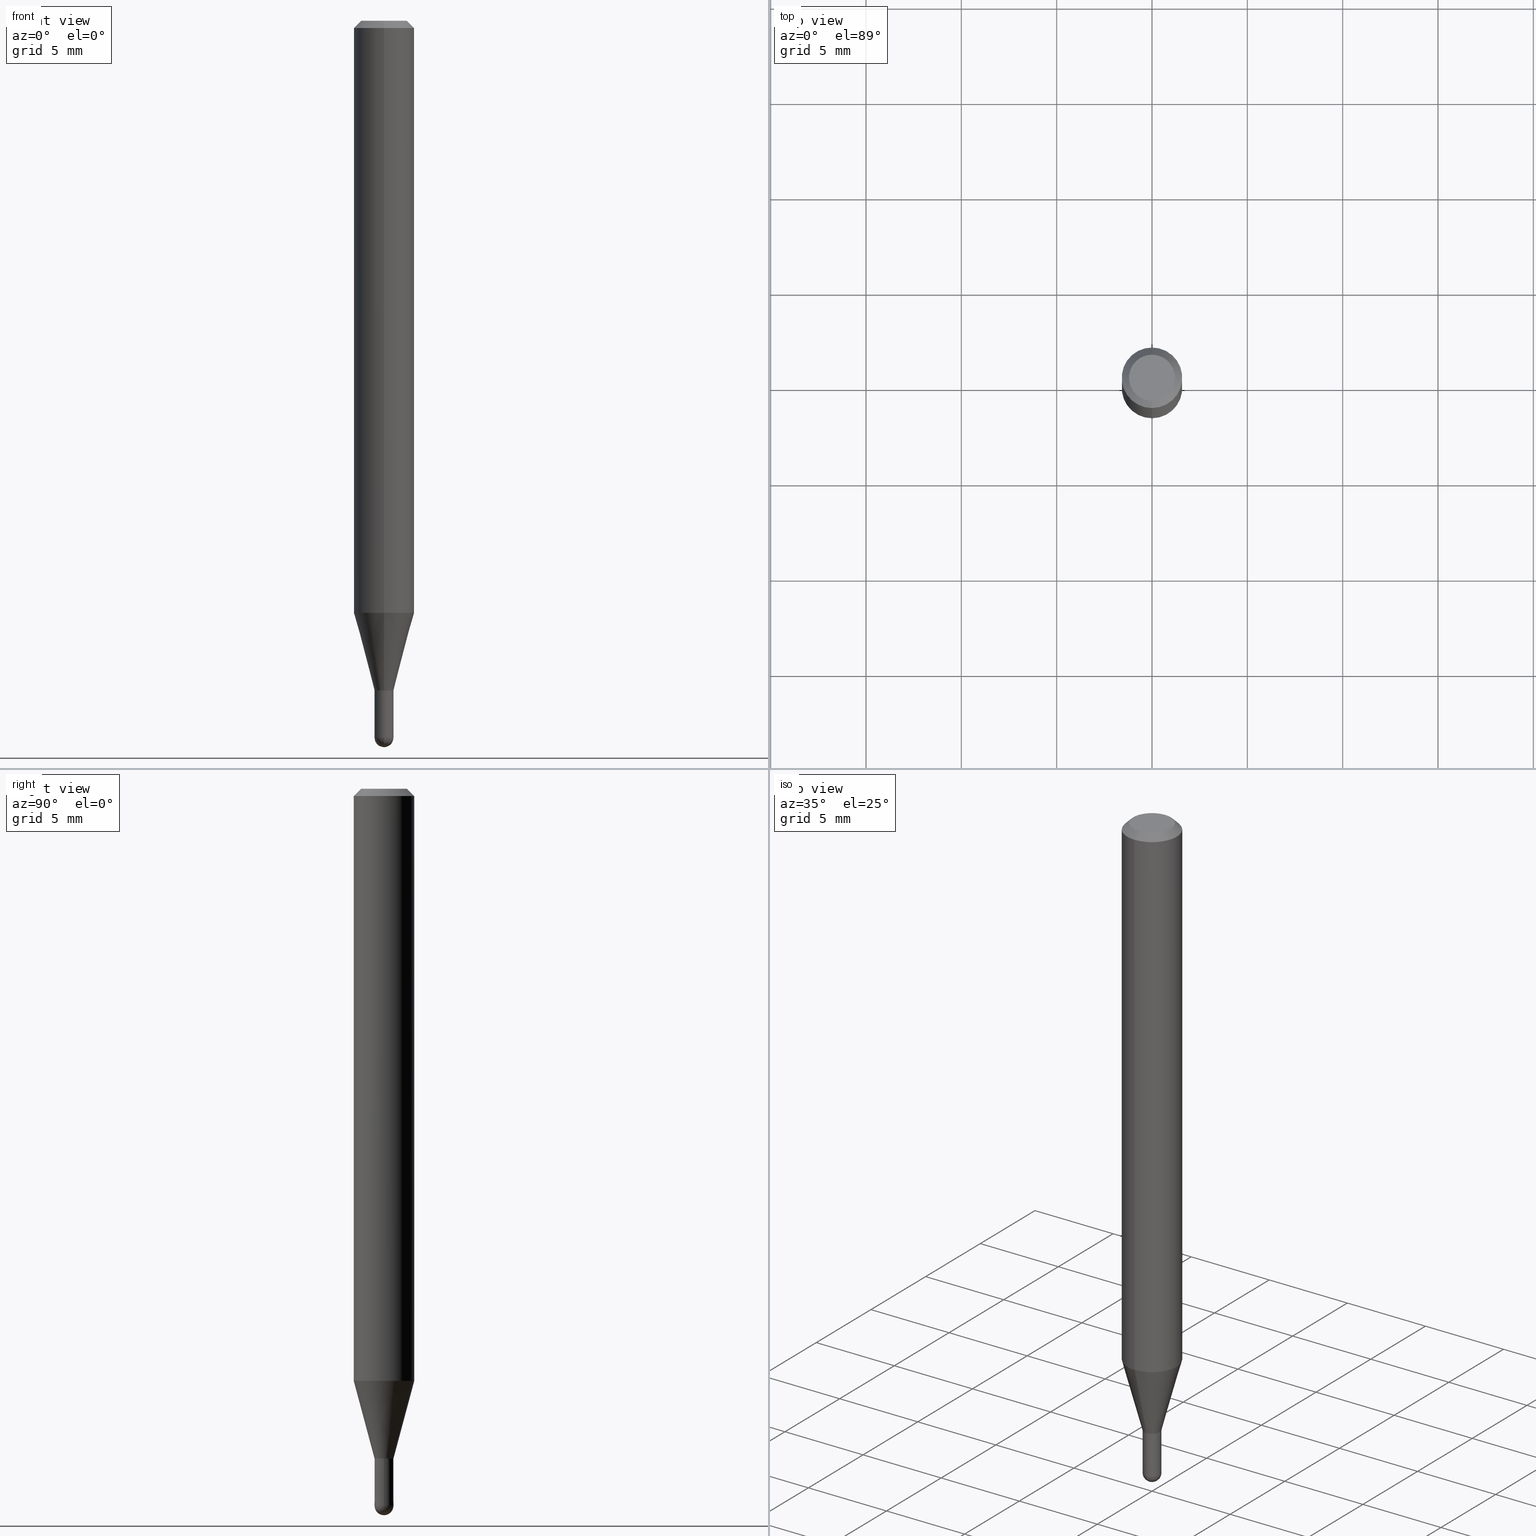
[diagram: canonical four-view strip — front | top / right | iso, engineering-drawing reading convention]
A machine part, canonical four-view strip (front | top / right | iso — engineering-drawing reading convention). The complete STEP part file that produces these views, byte-faithful:
ISO-10303-21;
HEADER;
FILE_DESCRIPTION (( 'STEP AP203' ),
    '1' );
FILE_NAME ('01462.STEP',
    '2024-03-07T21:13:20',
    ( '' ),
    ( '' ),
    'SwSTEP 2.0',
    'SolidWorks 2023',
    '' );
FILE_SCHEMA (( 'CONFIG_CONTROL_DESIGN' ));
ENDSEC;

DATA;
#1 = APPROVAL_STATUS ( 'not_yet_approved' ) ;
#2 = CARTESIAN_POINT ( 'NONE',  ( -4.364351673553916201E-16, -0.06250000000000000000, 2.182161224139924499E-16 ) ) ;
#3 = EDGE_CURVE ( 'NONE', #48, #276, #25, .T. ) ;
#4 = ORIENTED_EDGE ( 'NONE', *, *, #434, .F. ) ;
#5 = LINE ( 'NONE', #359, #385 ) ;
#6 = ORIENTED_EDGE ( 'NONE', *, *, #201, .T. ) ;
#7 = DIRECTION ( 'NONE',  ( -2.445485132504990036E-29, 3.491457958623879198E-15, 1.000000000000000000 ) ) ;
#8 = FACE_OUTER_BOUND ( 'NONE', #492, .T. ) ;
#9 = LINE ( 'NONE', #212, #313 ) ;
#10 = AXIS2_PLACEMENT_3D ( 'NONE', #367, #412, #166 ) ;
#11 = CARTESIAN_POINT ( 'NONE',  ( 1.361677722149159819E-16, 0.01949999999999517050, -1.383000000000000229 ) ) ;
#12 = EDGE_CURVE ( 'NONE', #282, #115, #324, .T. ) ;
#13 = DIRECTION ( 'NONE',  ( -6.982962677686265922E-15, -1.000000000000000000, 3.491457958623879198E-15 ) ) ;
#14 = CARTESIAN_POINT ( 'NONE',  ( 3.620516567557095727E-29, -5.169138122157277171E-15, -1.480500000000000149 ) ) ;
#15 = DIRECTION ( 'NONE',  ( -6.982962677686265922E-15, -1.000000000000000000, 4.370956789862821150E-15 ) ) ;
#16 = ORIENTED_EDGE ( 'NONE', *, *, #382, .F. ) ;
#17 = DIRECTION ( 'NONE',  ( -2.445485132504990036E-29, 3.491457958623879198E-15, 1.000000000000000000 ) ) ;
#18 = CIRCLE ( 'NONE', #369, 0.06250000000000000000 ) ;
#19 = ORIENTED_EDGE ( 'NONE', *, *, #95, .F. ) ;
#20 = ADVANCED_FACE ( 'NONE', ( #91 ), #92, .T. ) ;
#21 = DIRECTION ( 'NONE',  ( 2.445485132504990036E-29, -3.491457958623879198E-15, -1.000000000000000000 ) ) ;
#22 = CARTESIAN_POINT ( 'NONE',  ( 2.989658923416908872E-29, -4.268383521531617927E-15, -1.222521815274543844 ) ) ;
#23 = CARTESIAN_POINT ( 'NONE',  ( -1.361677722148462416E-16, -0.01950000000000520761, -1.480500000000000149 ) ) ;
#24 = ADVANCED_FACE ( 'NONE', ( #8 ), #413, .T. ) ;
#25 = CIRCLE ( 'NONE', #312, 0.01949999999999999303 ) ;
#26 = AXIS2_PLACEMENT_3D ( 'NONE', #254, #247, #168 ) ;
#27 = PRODUCT_DEFINITION_FORMATION_WITH_SPECIFIED_SOURCE ( 'ANY', '', #222, .NOT_KNOWN. ) ;
#28 = DIRECTION ( 'NONE',  ( -2.445485132504990036E-29, 3.491457958623879198E-15, 1.000000000000000000 ) ) ;
#29 = FACE_OUTER_BOUND ( 'NONE', #101, .T. ) ;
#30 = APPROVAL_ROLE ( '' ) ;
#31 = LINE ( 'NONE', #157, #155 ) ;
#32 = CC_DESIGN_DATE_AND_TIME_ASSIGNMENT ( #395, #38, ( #501 ) ) ;
#33 = AXIS2_PLACEMENT_3D ( 'NONE', #467, #138, #302 ) ;
#34 = AXIS2_PLACEMENT_3D ( 'NONE', #232, #318, #187 ) ;
#35 = CC_DESIGN_APPROVAL ( #426, ( #478 ) ) ;
#36 = PERSON_AND_ORGANIZATION_ROLE ( 'classification_officer' ) ;
#37 = VERTEX_POINT ( 'NONE', #97 ) ;
#38 = DATE_TIME_ROLE ( 'classification_date' ) ;
#39 = EDGE_LOOP ( 'NONE', ( #178, #299, #321, #175 ) ) ;
#40 = EDGE_CURVE ( 'NONE', #163, #159, #255, .T. ) ;
#41 = ORIENTED_EDGE ( 'NONE', *, *, #40, .T. ) ;
#42 = AXIS2_PLACEMENT_3D ( 'NONE', #259, #89, #57 ) ;
#43 = AXIS2_PLACEMENT_3D ( 'NONE', #380, #104, #347 ) ;
#44 = APPROVAL_DATE_TIME ( #231, #426 ) ;
#45 = CARTESIAN_POINT ( 'NONE',  ( 1.385558334732523231E-16, 0.01949999999999503172, -1.382500000000000284 ) ) ;
#46 = ORIENTED_EDGE ( 'NONE', *, *, #419, .T. ) ;
#47 = CARTESIAN_POINT ( 'NONE',  ( 2.989658923416908872E-29, -4.268383521531617927E-15, -1.222521815274543844 ) ) ;
#48 = VERTEX_POINT ( 'NONE', #337 ) ;
#49 = PERSON ( 'UNSPECIFIED', 'UNSPECIFIED', 'UNSPECIFIED', ('UNSPECIFIED'), ('UNSPECIFIED'), ('UNSPECIFIED') ) ;
#50 = DIRECTION ( 'NONE',  ( -2.445468806185136597E-29, 3.491481338843145583E-15, 1.000000000000000000 ) ) ;
#51 = EDGE_LOOP ( 'NONE', ( #274, #19, #211, #315 ) ) ;
#52 = ADVANCED_FACE ( 'NONE', ( #170 ), #98, .F. ) ;
#53 = DIRECTION ( 'NONE',  ( -6.982962677686265922E-15, -1.000000000000000000, 0.000000000000000000 ) ) ;
#54 = CONICAL_SURFACE ( 'NONE', #292, 0.01899999999999999953, 0.7853981633974718157 ) ;
#55 = DIRECTION ( 'NONE',  ( 5.024295867788180719E-15, 0.7071067811865666686, 0.7071067811865284769 ) ) ;
#56 = DIRECTION ( 'NONE',  ( -2.445485132504990036E-29, 3.491457958623879198E-15, 1.000000000000000000 ) ) ;
#57 = DIRECTION ( 'NONE',  ( -6.982962677686266711E-15, -1.000000000000000000, 0.000000000000000000 ) ) ;
#58 = FACE_OUTER_BOUND ( 'NONE', #158, .T. ) ;
#59 = EDGE_CURVE ( 'NONE', #328, #159, #490, .T. ) ;
#60 = DIRECTION ( 'NONE',  ( -6.982962677686265922E-15, -1.000000000000000000, 4.370956789862821150E-15 ) ) ;
#61 = CIRCLE ( 'NONE', #33, 0.01949999999999992017 ) ;
#62 = CONICAL_SURFACE ( 'NONE', #145, 0.06250000000000000000, 0.7853981633974483900 ) ;
#63 = ORIENTED_EDGE ( 'NONE', *, *, #169, .F. ) ;
#64 =( LENGTH_UNIT ( ) NAMED_UNIT ( * ) SI_UNIT ( $, .METRE. ) );
#65 =( NAMED_UNIT ( * ) SI_UNIT ( $, .STERADIAN. ) SOLID_ANGLE_UNIT ( ) );
#66 = LINE ( 'NONE', #386, #164 ) ;
#67 = CIRCLE ( 'NONE', #10, 0.01949999999999992017 ) ;
#68 = LENGTH_MEASURE_WITH_UNIT ( LENGTH_MEASURE( 0.02539999999999999897 ), #64 );
#69 = APPLICATION_CONTEXT ( 'configuration controlled 3d designs of mechanical parts and assemblies' ) ;
#70 = ADVANCED_FACE ( 'NONE', ( #286 ), #488, .F. ) ;
#71 = PERSON_AND_ORGANIZATION ( #49, #370 ) ;
#72 = DIRECTION ( 'NONE',  ( 4.937700262164548042E-15, 0.7071067811865451302, -0.7071067811865499042 ) ) ;
#73 = ORIENTED_EDGE ( 'NONE', *, *, #103, .T. ) ;
#74 = VECTOR ( 'NONE', #55, 39.37007874015748143 ) ;
#75 = ORIENTED_EDGE ( 'NONE', *, *, #112, .F. ) ;
#76 = EDGE_CURVE ( 'NONE', #433, #117, #144, .T. ) ;
#77 = APPROVAL_DATE_TIME ( #468, #458 ) ;
#78 = FACE_OUTER_BOUND ( 'NONE', #142, .T. ) ;
#79 = EDGE_LOOP ( 'NONE', ( #416, #16, #6, #113 ) ) ;
#80 = PERSON_AND_ORGANIZATION_ROLE ( 'design_owner' ) ;
#81 = CARTESIAN_POINT ( 'NONE',  ( 1.367794766338528106E-16, 0.01899999999999517006, -1.383000000000000229 ) ) ;
#82 = ORIENTED_EDGE ( 'NONE', *, *, #40, .F. ) ;
#83 = CLOSED_SHELL ( 'NONE', ( #411, #191, #70, #343, #221 ) ) ;
#84 = CIRCLE ( 'NONE', #26, 0.01949999999999999997 ) ;
#85 = CARTESIAN_POINT ( 'NONE',  ( 3.382105938254401951E-29, -4.828686356776826203E-15, -1.383000000000000229 ) ) ;
#86 = ORIENTED_EDGE ( 'NONE', *, *, #152, .T. ) ;
#87 = PLANE ( 'NONE',  #283 ) ;
#88 = EDGE_CURVE ( 'NONE', #115, #37, #105, .T. ) ;
#89 = DIRECTION ( 'NONE',  ( -2.445485132504990036E-29, 3.491457958623879198E-15, 1.000000000000000000 ) ) ;
#90 = DIRECTION ( 'NONE',  ( -2.445485132504990036E-29, 3.491457958623879198E-15, 1.000000000000000000 ) ) ;
#91 = FACE_OUTER_BOUND ( 'NONE', #357, .T. ) ;
#92 = CONICAL_SURFACE ( 'NONE', #384, 0.01899999999999999953, 0.7853981633974718157 ) ;
#93 = DIRECTION ( 'NONE',  ( -2.445485132504989475E-29, 3.491457958623879198E-15, 1.000000000000000000 ) ) ;
#94 = ORIENTED_EDGE ( 'NONE', *, *, #127, .T. ) ;
#95 = EDGE_CURVE ( 'NONE', #118, #512, #61, .T. ) ;
#96 = FACE_OUTER_BOUND ( 'NONE', #394, .T. ) ;
#97 = CARTESIAN_POINT ( 'NONE',  ( -4.364351673553912750E-16, -0.06250000000000005551, -0.01499999999999979128 ) ) ;
#98 = PLANE ( 'NONE',  #128 ) ;
#99 = LINE ( 'NONE', #338, #119 ) ;
#100 = CIRCLE ( 'NONE', #425, 0.01949999999999999997 ) ;
#101 = EDGE_LOOP ( 'NONE', ( #310, #291, #344, #429, #134 ) ) ;
#102 = DIRECTION ( 'NONE',  ( -2.445485132504990036E-29, 3.491457958623879198E-15, 1.000000000000000000 ) ) ;
#103 = EDGE_CURVE ( 'NONE', #147, #37, #181, .T. ) ;
#104 = DIRECTION ( 'NONE',  ( -2.445468806185136597E-29, 3.491481338843145583E-15, 1.000000000000000000 ) ) ;
#105 = CIRCLE ( 'NONE', #506, 0.06250000000000000000 ) ;
#106 = AXIS2_PLACEMENT_3D ( 'NONE', #177, #340, #263 ) ;
#107 = ADVANCED_FACE ( 'NONE', ( #505 ), #423, .T. ) ;
#108 = COORDINATED_UNIVERSAL_TIME_OFFSET ( 5, 0, .BEHIND. ) ;
#109 = CARTESIAN_POINT ( 'NONE',  ( 3.618848993293195667E-29, -5.171526183415615213E-15, -1.480500000000000149 ) ) ;
#110 = ORIENTED_EDGE ( 'NONE', *, *, #95, .T. ) ;
#111 = CALENDAR_DATE ( 2024, 7, 3 ) ;
#112 = EDGE_CURVE ( 'NONE', #118, #402, #66, .T. ) ;
#113 = ORIENTED_EDGE ( 'NONE', *, *, #88, .T. ) ;
#114 = AXIS2_PLACEMENT_3D ( 'NONE', #219, #262, #223 ) ;
#115 = VERTEX_POINT ( 'NONE', #224 ) ;
#116 = SECURITY_CLASSIFICATION_LEVEL ( 'unclassified' ) ;
#117 = VERTEX_POINT ( 'NONE', #23 ) ;
#118 = VERTEX_POINT ( 'NONE', #466 ) ;
#119 = VECTOR ( 'NONE', #498, 39.37007874015748143 ) ;
#120 = CC_DESIGN_PERSON_AND_ORGANIZATION_ASSIGNMENT ( #306, #36, ( #501 ) ) ;
#121 = CARTESIAN_POINT ( 'NONE',  ( 0.000000000000000000, 0.000000000000000000, 0.000000000000000000 ) ) ;
#122 = DIRECTION ( 'NONE',  ( 6.982962677686265922E-15, 1.000000000000000000, -3.491457958623879198E-15 ) ) ;
#123 = CARTESIAN_POINT ( 'NONE',  ( 1.385558334732527668E-16, 0.01949999999999509417, -1.383000000000000451 ) ) ;
#124 = ORIENTED_EDGE ( 'NONE', *, *, #3, .F. ) ;
#125 = DIRECTION ( 'NONE',  ( 2.445485132504990036E-29, -3.491457958623879198E-15, -1.000000000000000000 ) ) ;
#126 = CARTESIAN_POINT ( 'NONE',  ( 1.350031197944528297E-16, 0.01899999999999517006, -1.383000000000000229 ) ) ;
#127 = EDGE_CURVE ( 'NONE', #163, #150, #507, .T. ) ;
#128 = AXIS2_PLACEMENT_3D ( 'NONE', #494, #330, #122 ) ;
#129 = AXIS2_PLACEMENT_3D ( 'NONE', #22, #102, #60 ) ;
#130 = DIRECTION ( 'NONE',  ( 1.000000000000000000, -6.982962677686260400E-15, 0.000000000000000000 ) ) ;
#131 = LOCAL_TIME ( 16, 13, 20.00000000000000000, #508 ) ;
#132 = ORIENTED_EDGE ( 'NONE', *, *, #208, .F. ) ;
#133 = CYLINDRICAL_SURFACE ( 'NONE', #431, 0.01949999999999992017 ) ;
#134 = ORIENTED_EDGE ( 'NONE', *, *, #464, .T. ) ;
#135 = PERSON_AND_ORGANIZATION ( #49, #370 ) ;
#136 = EDGE_CURVE ( 'NONE', #512, #159, #356, .T. ) ;
#137 = AXIS2_PLACEMENT_3D ( 'NONE', #407, #50, #130 ) ;
#138 = DIRECTION ( 'NONE',  ( -2.445485132504990036E-29, 3.491457958623879198E-15, 1.000000000000000000 ) ) ;
#139 = DIRECTION ( 'NONE',  ( 7.105427357601000281E-15, 1.000000000000000000, 0.000000000000000000 ) ) ;
#140 = CARTESIAN_POINT ( 'NONE',  ( 3.620516567557095727E-29, -5.169138122157277171E-15, -1.480500000000000149 ) ) ;
#141 = DIRECTION ( 'NONE',  ( -1.807323732225381415E-15, -0.2588190451025255134, 0.9659258262890669799 ) ) ;
#142 = EDGE_LOOP ( 'NONE', ( #474, #510, #473, #237 ) ) ;
#143 = CC_DESIGN_PERSON_AND_ORGANIZATION_ASSIGNMENT ( #186, #435, ( #27 ) ) ;
#144 = CIRCLE ( 'NONE', #217, 0.01950000000000007977 ) ;
#145 = AXIS2_PLACEMENT_3D ( 'NONE', #422, #21, #179 ) ;
#146 = PERSON_AND_ORGANIZATION ( #49, #370 ) ;
#147 = VERTEX_POINT ( 'NONE', #151 ) ;
#148 = COORDINATED_UNIVERSAL_TIME_OFFSET ( 5, 0, .BEHIND. ) ;
#149 = DIRECTION ( 'NONE',  ( -2.445485132504990036E-29, 3.491457958623879198E-15, 1.000000000000000000 ) ) ;
#150 = VERTEX_POINT ( 'NONE', #400 ) ;
#151 = CARTESIAN_POINT ( 'NONE',  ( -3.773273898774340269E-16, -0.04749999999999999362, 1.569828228823879964E-16 ) ) ;
#152 = EDGE_CURVE ( 'NONE', #402, #37, #476, .T. ) ;
#153 = ORIENTED_EDGE ( 'NONE', *, *, #288, .F. ) ;
#154 = AXIS2_PLACEMENT_3D ( 'NONE', #279, #439, #336 ) ;
#155 = VECTOR ( 'NONE', #72, 39.37007874015748143 ) ;
#156 = APPROVAL_STATUS ( 'not_yet_approved' ) ;
#157 = CARTESIAN_POINT ( 'NONE',  ( 4.364351673553919652E-16, 0.06249999999999995143, -0.01500000000000022669 ) ) ;
#158 = EDGE_LOOP ( 'NONE', ( #82, #94, #346, #193 ) ) ;
#159 = VERTEX_POINT ( 'NONE', #45 ) ;
#160 = EDGE_CURVE ( 'NONE', #437, #216, #5, .T. ) ;
#161 = DESIGN_CONTEXT ( 'detailed design', #403, 'design' ) ;
#162 = FACE_OUTER_BOUND ( 'NONE', #51, .T. ) ;
#163 = VERTEX_POINT ( 'NONE', #81 ) ;
#164 = VECTOR ( 'NONE', #141, 39.37007874015748854 ) ;
#165 = VECTOR ( 'NONE', #195, 39.37007874015748143 ) ;
#166 = DIRECTION ( 'NONE',  ( -6.982962677686266711E-15, -1.000000000000000000, 0.000000000000000000 ) ) ;
#167 = VERTEX_POINT ( 'NONE', #390 ) ;
#168 = DIRECTION ( 'NONE',  ( 1.000000000000000000, -6.982962677686258033E-15, 0.000000000000000000 ) ) ;
#169 = EDGE_CURVE ( 'NONE', #37, #115, #453, .T. ) ;
#170 = FACE_OUTER_BOUND ( 'NONE', #240, .T. ) ;
#171 = DIRECTION ( 'NONE',  ( -6.982962677686266711E-15, -1.000000000000000000, 0.000000000000000000 ) ) ;
#172 = DIRECTION ( 'NONE',  ( -6.982962677686265922E-15, -1.000000000000000000, 0.000000000000000000 ) ) ;
#173 = CIRCLE ( 'NONE', #106, 0.01949999999999999303 ) ;
#174 = CARTESIAN_POINT ( 'NONE',  ( -0.01949999999999999303, -4.860372573415455392E-15, -1.480500000000000149 ) ) ;
#175 = ORIENTED_EDGE ( 'NONE', *, *, #472, .F. ) ;
#176 = CARTESIAN_POINT ( 'NONE',  ( 3.380883195688149763E-29, -4.826940627797513944E-15, -1.382500000000000284 ) ) ;
#177 = CARTESIAN_POINT ( 'NONE',  ( 3.620516567557095727E-29, -5.169138122157277171E-15, -1.480500000000000149 ) ) ;
#178 = ORIENTED_EDGE ( 'NONE', *, *, #355, .F. ) ;
#179 = DIRECTION ( 'NONE',  ( 6.982962677686265922E-15, 1.000000000000000000, -3.483106191921935554E-15 ) ) ;
#180 = AXIS2_PLACEMENT_3D ( 'NONE', #109, #397, #471 ) ;
#181 = LINE ( 'NONE', #461, #323 ) ;
#182 = CYLINDRICAL_SURFACE ( 'NONE', #43, 0.01949999999999999997 ) ;
#183 = EDGE_CURVE ( 'NONE', #276, #404, #479, .T. ) ;
#184 = ORIENTED_EDGE ( 'NONE', *, *, #382, .T. ) ;
#185 =( NAMED_UNIT ( * ) PLANE_ANGLE_UNIT ( ) SI_UNIT ( $, .RADIAN. ) );
#186 = PERSON_AND_ORGANIZATION ( #49, #370 ) ;
#187 = DIRECTION ( 'NONE',  ( -6.982962677686265922E-15, -1.000000000000000000, 0.000000000000000000 ) ) ;
#188 = VECTOR ( 'NONE', #408, 39.37007874015748143 ) ;
#189 = CARTESIAN_POINT ( 'NONE',  ( 1.385558334732189444E-16, 0.01949999999999992017, -6.808343019316537477E-17 ) ) ;
#190 = ORIENTED_EDGE ( 'NONE', *, *, #419, .F. ) ;
#191 = ADVANCED_FACE ( 'NONE', ( #78 ), #281, .T. ) ;
#192 = CARTESIAN_POINT ( 'NONE',  ( 3.382105938254401951E-29, -4.828686356776826203E-15, -1.383000000000000229 ) ) ;
#193 = ORIENTED_EDGE ( 'NONE', *, *, #448, .F. ) ;
#194 = APPROVAL_STATUS ( 'not_yet_approved' ) ;
#195 = DIRECTION ( 'NONE',  ( -2.445485132504990036E-29, 3.491457958623879198E-15, 1.000000000000000000 ) ) ;
#196 = EDGE_LOOP ( 'NONE', ( #280, #319, #63, #365 ) ) ;
#197 = AXIS2_PLACEMENT_3D ( 'NONE', #296, #125, #287 ) ;
#198 = CC_DESIGN_APPROVAL ( #388, ( #27 ) ) ;
#199 = SHAPE_DEFINITION_REPRESENTATION ( #214, #260 ) ;
#200 = DIRECTION ( 'NONE',  ( -6.982962677686265922E-15, -1.000000000000000000, 0.000000000000000000 ) ) ;
#201 = EDGE_CURVE ( 'NONE', #167, #115, #31, .T. ) ;
#202 = EDGE_LOOP ( 'NONE', ( #457, #354, #234, #470, #220 ) ) ;
#203 = CARTESIAN_POINT ( 'NONE',  ( 3.618848993293195667E-29, -5.171526183415615213E-15, -1.480500000000000149 ) ) ;
#204 = EDGE_LOOP ( 'NONE', ( #248, #362, #4, #124 ) ) ;
#205 = CARTESIAN_POINT ( 'NONE',  ( 0.000000000000000000, 0.000000000000000000, 0.000000000000000000 ) ) ;
#206 = CARTESIAN_POINT ( 'NONE',  ( 3.668227698757487488E-31, -5.237186937935821336E-17, -0.01500000000000000812 ) ) ;
#207 = AXIS2_PLACEMENT_3D ( 'NONE', #444, #256, #376 ) ;
#208 = EDGE_CURVE ( 'NONE', #150, #163, #261, .T. ) ;
#209 = LOCAL_TIME ( 16, 13, 20.00000000000000000, #108 ) ;
#210 = FACE_OUTER_BOUND ( 'NONE', #204, .T. ) ;
#211 = ORIENTED_EDGE ( 'NONE', *, *, #472, .T. ) ;
#212 = CARTESIAN_POINT ( 'NONE',  ( -1.326762908760052313E-16, -0.01900000000000482553, -1.383000000000000229 ) ) ;
#213 = ORIENTED_EDGE ( 'NONE', *, *, #366, .F. ) ;
#214 = PRODUCT_DEFINITION_SHAPE ( 'NONE', 'NONE',  #478 ) ;
#215 = CARTESIAN_POINT ( 'NONE',  ( 4.440892098500922971E-16, 0.06249999999999571176, -1.222521815274544066 ) ) ;
#216 = VERTEX_POINT ( 'NONE', #353 ) ;
#217 = AXIS2_PLACEMENT_3D ( 'NONE', #332, #294, #406 ) ;
#218 = CIRCLE ( 'NONE', #351, 0.01949999999999999303 ) ;
#219 = CARTESIAN_POINT ( 'NONE',  ( 0.000000000000000000, 0.000000000000000000, 0.000000000000000000 ) ) ;
#220 = ORIENTED_EDGE ( 'NONE', *, *, #349, .F. ) ;
#221 = ADVANCED_FACE ( 'NONE', ( #272 ), #432, .T. ) ;
#222 = PRODUCT ( '01462', '01462', '', ( #383 ) ) ;
#223 = DIRECTION ( 'NONE',  ( 1.000000000000000000, 0.000000000000000000, 0.000000000000000000 ) ) ;
#224 = CARTESIAN_POINT ( 'NONE',  ( 4.440892098500925929E-16, 0.06249999999999995143, -0.01500000000000022669 ) ) ;
#225 = EDGE_CURVE ( 'NONE', #402, #282, #18, .T. ) ;
#226 = CLOSED_SHELL ( 'NONE', ( #295, #20, #303, #107, #251, #305, #24, #441, #52, #326, #314, #258 ) ) ;
#227 = CIRCLE ( 'NONE', #137, 0.01949999999999999303 ) ;
#228 =( CONVERSION_BASED_UNIT ( 'INCH', #68 ) LENGTH_UNIT ( ) NAMED_UNIT ( #239 ) );
#229 = DIRECTION ( 'NONE',  ( -2.445485132504990036E-29, 3.491457958623879198E-15, 1.000000000000000000 ) ) ;
#230 = MANIFOLD_SOLID_BREP ( 'Body-Move/Copy2[2]', #226 ) ;
#231 = DATE_AND_TIME ( #308, #253 ) ;
#232 = CARTESIAN_POINT ( 'NONE',  ( 3.382105938254401951E-29, -4.828686356776826203E-15, -1.383000000000000229 ) ) ;
#233 = CIRCLE ( 'NONE', #300, 0.04749999999999999362 ) ;
#234 = ORIENTED_EDGE ( 'NONE', *, *, #264, .T. ) ;
#235 = CC_DESIGN_PERSON_AND_ORGANIZATION_ASSIGNMENT ( #146, #317, ( #27 ) ) ;
#236 = PERSON_AND_ORGANIZATION ( #49, #370 ) ;
#237 = ORIENTED_EDGE ( 'NONE', *, *, #264, .F. ) ;
#238 = CALENDAR_DATE ( 2024, 7, 3 ) ;
#239 = DIMENSIONAL_EXPONENTS ( 1.000000000000000000, 0.000000000000000000, 0.000000000000000000, 0.000000000000000000, 0.000000000000000000, 0.000000000000000000, 0.000000000000000000 ) ;
#240 = EDGE_LOOP ( 'NONE', ( #184, #246 ) ) ;
#241 = CALENDAR_DATE ( 2024, 7, 3 ) ;
#242 = CC_DESIGN_DATE_AND_TIME_ASSIGNMENT ( #269, #428, ( #478 ) ) ;
#243 = ORIENTED_EDGE ( 'NONE', *, *, #201, .F. ) ;
#244 = AXIS2_PLACEMENT_3D ( 'NONE', #339, #497, #421 ) ;
#245 = CARTESIAN_POINT ( 'NONE',  ( -1.361677722148483124E-16, -0.01950000000000481210, -1.382500000000000284 ) ) ;
#246 = ORIENTED_EDGE ( 'NONE', *, *, #288, .T. ) ;
#247 = DIRECTION ( 'NONE',  ( -2.445468806185136597E-29, 3.491481338843145583E-15, 1.000000000000000000 ) ) ;
#248 = ORIENTED_EDGE ( 'NONE', *, *, #495, .F. ) ;
#249 = FACE_OUTER_BOUND ( 'NONE', #443, .T. ) ;
#250 = CARTESIAN_POINT ( 'NONE',  ( 3.382105938254401951E-29, -4.828686356776826203E-15, -1.383000000000000229 ) ) ;
#251 = ADVANCED_FACE ( 'NONE', ( #96 ), #392, .T. ) ;
#252 = CONICAL_SURFACE ( 'NONE', #207, 0.01949999999999992017, 0.2617993877991578455 ) ;
#253 = LOCAL_TIME ( 16, 13, 20.00000000000000000, #430 ) ;
#254 = CARTESIAN_POINT ( 'NONE',  ( 3.382083358954044842E-29, -4.828718691620071353E-15, -1.383000000000000229 ) ) ;
#255 = LINE ( 'NONE', #126, #74 ) ;
#256 = DIRECTION ( 'NONE',  ( -2.445485132504990036E-29, 3.491457958623879198E-15, 1.000000000000000000 ) ) ;
#257 = DIRECTION ( 'NONE',  ( -2.445485132504990036E-29, 3.491457958623879198E-15, 1.000000000000000000 ) ) ;
#258 = ADVANCED_FACE ( 'NONE', ( #162 ), #485, .F. ) ;
#259 = CARTESIAN_POINT ( 'NONE',  ( 3.380883195688149763E-29, -4.826940627797513944E-15, -1.382500000000000284 ) ) ;
#260 = ADVANCED_BREP_SHAPE_REPRESENTATION ( '01462', ( #410, #230, #114 ), #352 ) ;
#261 = CIRCLE ( 'NONE', #34, 0.01899999999999999953 ) ;
#262 = DIRECTION ( 'NONE',  ( 0.000000000000000000, 0.000000000000000000, 1.000000000000000000 ) ) ;
#263 = DIRECTION ( 'NONE',  ( 1.000000000000000000, -6.982962677686260400E-15, 0.000000000000000000 ) ) ;
#264 = EDGE_CURVE ( 'NONE', #117, #437, #227, .T. ) ;
#265 = DIRECTION ( 'NONE',  ( 1.000000000000000000, -6.982962677686260400E-15, 0.000000000000000000 ) ) ;
#266 = CARTESIAN_POINT ( 'NONE',  ( 3.382083358954044842E-29, -4.828718691620071353E-15, -1.383000000000000229 ) ) ;
#267 = VECTOR ( 'NONE', #229, 39.37007874015748143 ) ;
#268 = UNCERTAINTY_MEASURE_WITH_UNIT (LENGTH_MEASURE( 1.000000000000000082E-05 ), #228, 'distance_accuracy_value', 'NONE');
#269 = DATE_AND_TIME ( #111, #209 ) ;
#270 = PRODUCT_RELATED_PRODUCT_CATEGORY ( 'detail', '', ( #222 ) ) ;
#271 = ORIENTED_EDGE ( 'NONE', *, *, #355, .T. ) ;
#272 = FACE_OUTER_BOUND ( 'NONE', #202, .T. ) ;
#273 = CIRCLE ( 'NONE', #451, 0.04749999999999999362 ) ;
#274 = ORIENTED_EDGE ( 'NONE', *, *, #136, .F. ) ;
#275 = PERSON_AND_ORGANIZATION_ROLE ( 'creator' ) ;
#276 = VERTEX_POINT ( 'NONE', #174 ) ;
#277 = CC_DESIGN_PERSON_AND_ORGANIZATION_ASSIGNMENT ( #135, #80, ( #222 ) ) ;
#278 = CALENDAR_DATE ( 2024, 7, 3 ) ;
#279 = CARTESIAN_POINT ( 'NONE',  ( 0.000000000000000000, 0.000000000000000000, 0.000000000000000000 ) ) ;
#280 = ORIENTED_EDGE ( 'NONE', *, *, #225, .T. ) ;
#281 = SPHERICAL_SURFACE ( 'NONE', #180, 0.01950000000000007977 ) ;
#282 = VERTEX_POINT ( 'NONE', #215 ) ;
#283 = AXIS2_PLACEMENT_3D ( 'NONE', #85, #93, #13 ) ;
#284 = APPROVAL_PERSON_ORGANIZATION ( #391, #388, #350 ) ;
#285 = FACE_OUTER_BOUND ( 'NONE', #396, .T. ) ;
#286 = FACE_OUTER_BOUND ( 'NONE', #307, .T. ) ;
#287 = DIRECTION ( 'NONE',  ( 6.982962677686265922E-15, 1.000000000000000000, -3.483106191921935554E-15 ) ) ;
#288 = EDGE_CURVE ( 'NONE', #147, #167, #273, .T. ) ;
#289 = DIRECTION ( 'NONE',  ( 1.000000000000000000, -6.982962677686260400E-15, 0.000000000000000000 ) ) ;
#290 = FACE_OUTER_BOUND ( 'NONE', #427, .T. ) ;
#291 = ORIENTED_EDGE ( 'NONE', *, *, #183, .T. ) ;
#292 = AXIS2_PLACEMENT_3D ( 'NONE', #449, #17, #53 ) ;
#293 = CARTESIAN_POINT ( 'NONE',  ( 2.167049569004966557E-46, -3.093931082984982504E-32, -8.861430152246261711E-18 ) ) ;
#294 = DIRECTION ( 'NONE',  ( -1.000000000000000000, 6.982962677686265922E-15, -4.883557194083112340E-29 ) ) ;
#295 = ADVANCED_FACE ( 'NONE', ( #322 ), #133, .F. ) ;
#296 = CARTESIAN_POINT ( 'NONE',  ( 3.668227698757487488E-31, -5.237186937935821336E-17, -0.01500000000000000812 ) ) ;
#297 = DIRECTION ( 'NONE',  ( -2.445485132504990036E-29, 3.491457958623879198E-15, 1.000000000000000000 ) ) ;
#298 = APPLICATION_PROTOCOL_DEFINITION ( 'international standard', 'config_control_design', 1994, #69 ) ;
#299 = ORIENTED_EDGE ( 'NONE', *, *, #136, .T. ) ;
#300 = AXIS2_PLACEMENT_3D ( 'NONE', #293, #455, #345 ) ;
#301 = CARTESIAN_POINT ( 'NONE',  ( 3.618848993293195667E-29, -5.171526183415615213E-15, -1.480500000000000149 ) ) ;
#302 = DIRECTION ( 'NONE',  ( -6.982962677686266711E-15, -1.000000000000000000, 0.000000000000000000 ) ) ;
#303 = ADVANCED_FACE ( 'NONE', ( #249 ), #500, .T. ) ;
#304 = DIRECTION ( 'NONE',  ( 1.000000000000000000, -6.982962677686258033E-15, 0.000000000000000000 ) ) ;
#305 = ADVANCED_FACE ( 'NONE', ( #285 ), #252, .T. ) ;
#306 = PERSON_AND_ORGANIZATION ( #49, #370 ) ;
#307 = EDGE_LOOP ( 'NONE', ( #381, #463 ) ) ;
#308 = CALENDAR_DATE ( 2024, 7, 3 ) ;
#309 = DIRECTION ( 'NONE',  ( -2.445468806185136877E-29, 3.491481338843145188E-15, 1.000000000000000000 ) ) ;
#310 = ORIENTED_EDGE ( 'NONE', *, *, #3, .T. ) ;
#311 = PERSON_AND_ORGANIZATION ( #49, #370 ) ;
#312 = AXIS2_PLACEMENT_3D ( 'NONE', #14, #377, #289 ) ;
#313 = VECTOR ( 'NONE', #373, 39.37007874015748143 ) ;
#314 = ADVANCED_FACE ( 'NONE', ( #58 ), #54, .T. ) ;
#315 = ORIENTED_EDGE ( 'NONE', *, *, #59, .T. ) ;
#316 = CC_DESIGN_APPROVAL ( #458, ( #501 ) ) ;
#317 = PERSON_AND_ORGANIZATION_ROLE ( 'design_supplier' ) ;
#318 = DIRECTION ( 'NONE',  ( -2.445485132504990036E-29, 3.491457958623879198E-15, 1.000000000000000000 ) ) ;
#319 = ORIENTED_EDGE ( 'NONE', *, *, #12, .T. ) ;
#320 = CARTESIAN_POINT ( 'NONE',  ( 3.668227698757487488E-31, -5.237186937935821336E-17, -0.01500000000000000812 ) ) ;
#321 = ORIENTED_EDGE ( 'NONE', *, *, #448, .T. ) ;
#322 = FACE_OUTER_BOUND ( 'NONE', #39, .T. ) ;
#323 = VECTOR ( 'NONE', #348, 39.37007874015748143 ) ;
#324 = LINE ( 'NONE', #375, #188 ) ;
#325 = CIRCLE ( 'NONE', #129, 0.06250000000000000000 ) ;
#326 = ADVANCED_FACE ( 'NONE', ( #290 ), #87, .F. ) ;
#327 = DIRECTION ( 'NONE',  ( -6.982962677686265922E-15, -1.000000000000000000, 0.000000000000000000 ) ) ;
#328 = VERTEX_POINT ( 'NONE', #245 ) ;
#329 = DIRECTION ( 'NONE',  ( -2.445485132504990036E-29, 3.491457958623879198E-15, 1.000000000000000000 ) ) ;
#330 = DIRECTION ( 'NONE',  ( 2.445485132504989475E-29, -3.491457958623879198E-15, -1.000000000000000000 ) ) ;
#331 = LINE ( 'NONE', #123, #341 ) ;
#332 = CARTESIAN_POINT ( 'NONE',  ( 3.618848993293195667E-29, -5.171526183415615213E-15, -1.480500000000000149 ) ) ;
#333 = CC_DESIGN_PERSON_AND_ORGANIZATION_ASSIGNMENT ( #311, #275, ( #478 ) ) ;
#334 = AXIS2_PLACEMENT_3D ( 'NONE', #11, #445, #456 ) ;
#335 = AXIS2_PLACEMENT_3D ( 'NONE', #203, #405, #327 ) ;
#336 = DIRECTION ( 'NONE',  ( 1.000000000000000000, -6.982962677686265922E-15, 4.876176775795935793E-29 ) ) ;
#337 = CARTESIAN_POINT ( 'NONE',  ( 1.385558334732559716E-16, 0.01949999999999486866, -1.480500000000000149 ) ) ;
#338 = CARTESIAN_POINT ( 'NONE',  ( -1.361677722148816418E-16, -0.01949999999999992017, 6.808343019316537477E-17 ) ) ;
#339 = CARTESIAN_POINT ( 'NONE',  ( 0.000000000000000000, 0.000000000000000000, 0.000000000000000000 ) ) ;
#340 = DIRECTION ( 'NONE',  ( -2.445468806185136597E-29, 3.491481338843145583E-15, 1.000000000000000000 ) ) ;
#341 = VECTOR ( 'NONE', #489, 39.37007874015748143 ) ;
#342 = FACE_OUTER_BOUND ( 'NONE', #79, .T. ) ;
#343 = ADVANCED_FACE ( 'NONE', ( #210 ), #371, .T. ) ;
#344 = ORIENTED_EDGE ( 'NONE', *, *, #503, .F. ) ;
#345 = DIRECTION ( 'NONE',  ( -6.982962677686266711E-15, -1.000000000000000000, 3.491457958623879592E-15 ) ) ;
#346 = ORIENTED_EDGE ( 'NONE', *, *, #366, .T. ) ;
#347 = DIRECTION ( 'NONE',  ( 1.000000000000000000, -6.982962677686265922E-15, 4.876176775795935793E-29 ) ) ;
#348 = DIRECTION ( 'NONE',  ( -4.851104656540964275E-15, -0.7071067811865500152, -0.7071067811865450192 ) ) ;
#349 = EDGE_CURVE ( 'NONE', #404, #216, #84, .T. ) ;
#350 = APPROVAL_ROLE ( '' ) ;
#351 = AXIS2_PLACEMENT_3D ( 'NONE', #140, #504, #265 ) ;
#352 =( GEOMETRIC_REPRESENTATION_CONTEXT ( 3 ) GLOBAL_UNCERTAINTY_ASSIGNED_CONTEXT ( ( #268 ) ) GLOBAL_UNIT_ASSIGNED_CONTEXT ( ( #228, #185, #65 ) ) REPRESENTATION_CONTEXT ( 'NONE', 'WORKASPACE' ) );
#353 = CARTESIAN_POINT ( 'NONE',  ( 0.01949999999999999997, -4.964886463834953365E-15, -1.383000000000000229 ) ) ;
#354 = ORIENTED_EDGE ( 'NONE', *, *, #434, .T. ) ;
#355 = EDGE_CURVE ( 'NONE', #512, #118, #67, .T. ) ;
#356 = LINE ( 'NONE', #189, #267 ) ;
#357 = EDGE_LOOP ( 'NONE', ( #447, #41, #398, #213 ) ) ;
#358 = APPROVAL_ROLE ( '' ) ;
#359 = CARTESIAN_POINT ( 'NONE',  ( 0.01949999999999999997, -1.361677722148821841E-16, 9.508544712802074656E-31 ) ) ;
#360 = AXIS2_PLACEMENT_3D ( 'NONE', #414, #90, #171 ) ;
#361 = APPROVAL_PERSON_ORGANIZATION ( #236, #458, #358 ) ;
#362 = ORIENTED_EDGE ( 'NONE', *, *, #76, .T. ) ;
#363 = ORIENTED_EDGE ( 'NONE', *, *, #374, .F. ) ;
#364 = DIRECTION ( 'NONE',  ( -6.982962677686266711E-15, -1.000000000000000000, 3.491457958623879592E-15 ) ) ;
#365 = ORIENTED_EDGE ( 'NONE', *, *, #152, .F. ) ;
#366 = EDGE_CURVE ( 'NONE', #150, #328, #9, .T. ) ;
#367 = CARTESIAN_POINT ( 'NONE',  ( 3.382105938254402512E-29, -4.828686356776826992E-15, -1.383000000000000451 ) ) ;
#368 = CARTESIAN_POINT ( 'NONE',  ( 0.000000000000000000, 0.000000000000000000, 0.000000000000000000 ) ) ;
#369 = AXIS2_PLACEMENT_3D ( 'NONE', #47, #7, #15 ) ;
#370 = ORGANIZATION ( 'UNSPECIFIED', 'UNSPECIFIED', '' ) ;
#371 = SPHERICAL_SURFACE ( 'NONE', #335, 0.01950000000000007977 ) ;
#372 = ORIENTED_EDGE ( 'NONE', *, *, #374, .T. ) ;
#373 = DIRECTION ( 'NONE',  ( -4.937700262164664794E-15, -0.7071067811865617836, 0.7071067811865333619 ) ) ;
#374 = EDGE_CURVE ( 'NONE', #512, #282, #331, .T. ) ;
#375 = CARTESIAN_POINT ( 'NONE',  ( 4.440892098500625669E-16, 0.06250000000000000000, -2.182161224139924499E-16 ) ) ;
#376 = DIRECTION ( 'NONE',  ( -6.982962677686266711E-15, -1.000000000000000000, 0.000000000000000000 ) ) ;
#377 = DIRECTION ( 'NONE',  ( -2.445468806185136597E-29, 3.491481338843145583E-15, 1.000000000000000000 ) ) ;
#378 = CIRCLE ( 'NONE', #442, 0.01949999999999992017 ) ;
#379 = CARTESIAN_POINT ( 'NONE',  ( 3.665701847881856207E-29, -5.240804100152225240E-15, -1.500000000000000444 ) ) ;
#380 = CARTESIAN_POINT ( 'NONE',  ( 0.000000000000000000, 0.000000000000000000, 0.000000000000000000 ) ) ;
#381 = ORIENTED_EDGE ( 'NONE', *, *, #503, .T. ) ;
#382 = EDGE_CURVE ( 'NONE', #167, #147, #233, .T. ) ;
#383 = MECHANICAL_CONTEXT ( 'NONE', #69, 'mechanical' ) ;
#384 = AXIS2_PLACEMENT_3D ( 'NONE', #250, #484, #172 ) ;
#385 = VECTOR ( 'NONE', #436, 39.37007874015748143 ) ;
#386 = CARTESIAN_POINT ( 'NONE',  ( -1.361677722148478193E-16, -0.01950000000000474965, -1.383000000000000451 ) ) ;
#387 = CARTESIAN_POINT ( 'NONE',  ( 0.01949999999999999303, -5.135096179103555879E-15, -1.480500000000000149 ) ) ;
#388 = APPROVAL ( #1, 'UNSPECIFIED' ) ;
#389 = APPROVAL_DATE_TIME ( #438, #388 ) ;
#390 = CARTESIAN_POINT ( 'NONE',  ( 3.840629472727447874E-16, 0.04749999999999999362, -1.747056831868805136E-16 ) ) ;
#391 = PERSON_AND_ORGANIZATION ( #49, #370 ) ;
#392 = CONICAL_SURFACE ( 'NONE', #360, 0.01949999999999992017, 0.2617993877991578455 ) ;
#393 = LOCAL_TIME ( 16, 13, 20.00000000000000000, #148 ) ;
#394 = EDGE_LOOP ( 'NONE', ( #110, #372, #459, #75 ) ) ;
#395 = DATE_AND_TIME ( #241, #393 ) ;
#396 = EDGE_LOOP ( 'NONE', ( #363, #271, #480, #190 ) ) ;
#397 = DIRECTION ( 'NONE',  ( 1.000000000000000000, -6.982962677686265922E-15, 4.883557194083112340E-29 ) ) ;
#398 = ORIENTED_EDGE ( 'NONE', *, *, #59, .F. ) ;
#399 = COORDINATED_UNIVERSAL_TIME_OFFSET ( 5, 0, .BEHIND. ) ;
#400 = CARTESIAN_POINT ( 'NONE',  ( -1.326762908760052313E-16, -0.01900000000000482553, -1.383000000000000229 ) ) ;
#401 = AXIS2_PLACEMENT_3D ( 'NONE', #320, #149, #511 ) ;
#402 = VERTEX_POINT ( 'NONE', #460 ) ;
#403 = APPLICATION_CONTEXT ( 'configuration controlled 3d designs of mechanical parts and assemblies' ) ;
#404 = VERTEX_POINT ( 'NONE', #462 ) ;
#405 = DIRECTION ( 'NONE',  ( 1.000000000000000000, -6.982962677686265922E-15, 4.883557194083112340E-29 ) ) ;
#406 = DIRECTION ( 'NONE',  ( -6.982962677686266711E-15, -1.000000000000000000, 0.000000000000000000 ) ) ;
#407 = CARTESIAN_POINT ( 'NONE',  ( 3.620516567557095727E-29, -5.169138122157277171E-15, -1.480500000000000149 ) ) ;
#408 = DIRECTION ( 'NONE',  ( -2.445485132504990036E-29, 3.491457958623879198E-15, 1.000000000000000000 ) ) ;
#409 = VECTOR ( 'NONE', #309, 39.37007874015748143 ) ;
#410 = MANIFOLD_SOLID_BREP ( 'Body-Move/Copy2[1]', #83 ) ;
#411 = ADVANCED_FACE ( 'NONE', ( #29 ), #182, .T. ) ;
#412 = DIRECTION ( 'NONE',  ( -2.445485132504990036E-29, 3.491457958623879198E-15, 1.000000000000000000 ) ) ;
#413 = CYLINDRICAL_SURFACE ( 'NONE', #450, 0.06250000000000000000 ) ;
#414 = CARTESIAN_POINT ( 'NONE',  ( 3.382105938254402512E-29, -4.828686356776826992E-15, -1.383000000000000451 ) ) ;
#415 = DIRECTION ( 'NONE',  ( -6.982962677686265922E-15, -1.000000000000000000, 3.483106191921935554E-15 ) ) ;
#416 = ORIENTED_EDGE ( 'NONE', *, *, #103, .F. ) ;
#417 = CIRCLE ( 'NONE', #482, 0.01950000000000007977 ) ;
#418 = APPROVAL_PERSON_ORGANIZATION ( #71, #426, #30 ) ;
#419 = EDGE_CURVE ( 'NONE', #282, #402, #325, .T. ) ;
#420 = DIRECTION ( 'NONE',  ( -2.445468806185136597E-29, 3.491481338843145583E-15, 1.000000000000000000 ) ) ;
#421 = DIRECTION ( 'NONE',  ( -6.982962677686265922E-15, -1.000000000000000000, 3.491457958623879198E-15 ) ) ;
#422 = CARTESIAN_POINT ( 'NONE',  ( 3.668227698757487488E-31, -5.237186937935821336E-17, -0.01500000000000000812 ) ) ;
#423 = CYLINDRICAL_SURFACE ( 'NONE', #244, 0.06250000000000000000 ) ;
#424 = AXIS2_PLACEMENT_3D ( 'NONE', #121, #329, #364 ) ;
#425 = AXIS2_PLACEMENT_3D ( 'NONE', #266, #420, #304 ) ;
#426 = APPROVAL ( #156, 'UNSPECIFIED' ) ;
#427 = EDGE_LOOP ( 'NONE', ( #132, #440 ) ) ;
#428 = DATE_TIME_ROLE ( 'creation_date' ) ;
#429 = ORIENTED_EDGE ( 'NONE', *, *, #160, .F. ) ;
#430 = COORDINATED_UNIVERSAL_TIME_OFFSET ( 5, 0, .BEHIND. ) ;
#431 = AXIS2_PLACEMENT_3D ( 'NONE', #205, #56, #481 ) ;
#432 = CYLINDRICAL_SURFACE ( 'NONE', #154, 0.01949999999999999997 ) ;
#433 = VERTEX_POINT ( 'NONE', #379 ) ;
#434 = EDGE_CURVE ( 'NONE', #276, #117, #173, .T. ) ;
#435 = PERSON_AND_ORGANIZATION_ROLE ( 'creator' ) ;
#436 = DIRECTION ( 'NONE',  ( -2.445468806185136877E-29, 3.491481338843145188E-15, 1.000000000000000000 ) ) ;
#437 = VERTEX_POINT ( 'NONE', #387 ) ;
#438 = DATE_AND_TIME ( #278, #131 ) ;
#439 = DIRECTION ( 'NONE',  ( -2.445468806185136597E-29, 3.491481338843145583E-15, 1.000000000000000000 ) ) ;
#440 = ORIENTED_EDGE ( 'NONE', *, *, #127, .F. ) ;
#441 = ADVANCED_FACE ( 'NONE', ( #342 ), #62, .T. ) ;
#442 = AXIS2_PLACEMENT_3D ( 'NONE', #176, #28, #502 ) ;
#443 = EDGE_LOOP ( 'NONE', ( #153, #73, #477, #243 ) ) ;
#444 = CARTESIAN_POINT ( 'NONE',  ( 3.382105938254402512E-29, -4.828686356776826992E-15, -1.383000000000000451 ) ) ;
#445 = DIRECTION ( 'NONE',  ( 2.438088387897960049E-29, -3.491481338843145188E-15, -1.000000000000000000 ) ) ;
#446 = CARTESIAN_POINT ( 'NONE',  ( 2.167049569004966557E-46, -3.093931082984982504E-32, -8.861430152246261711E-18 ) ) ;
#447 = ORIENTED_EDGE ( 'NONE', *, *, #208, .T. ) ;
#448 = EDGE_CURVE ( 'NONE', #159, #328, #378, .T. ) ;
#449 = CARTESIAN_POINT ( 'NONE',  ( 3.382105938254401951E-29, -4.828686356776826203E-15, -1.383000000000000229 ) ) ;
#450 = AXIS2_PLACEMENT_3D ( 'NONE', #368, #297, #452 ) ;
#451 = AXIS2_PLACEMENT_3D ( 'NONE', #446, #493, #487 ) ;
#452 = DIRECTION ( 'NONE',  ( -6.982962677686265922E-15, -1.000000000000000000, 3.491457958623879198E-15 ) ) ;
#453 = CIRCLE ( 'NONE', #401, 0.06250000000000000000 ) ;
#454 = CC_DESIGN_SECURITY_CLASSIFICATION ( #501, ( #27 ) ) ;
#455 = DIRECTION ( 'NONE',  ( -2.445485132504990036E-29, 3.491457958623879198E-15, 1.000000000000000000 ) ) ;
#456 = DIRECTION ( 'NONE',  ( -1.000000000000000000, 6.982962677686265922E-15, -4.876176775795935793E-29 ) ) ;
#457 = ORIENTED_EDGE ( 'NONE', *, *, #183, .F. ) ;
#458 = APPROVAL ( #194, 'UNSPECIFIED' ) ;
#459 = ORIENTED_EDGE ( 'NONE', *, *, #225, .F. ) ;
#460 = CARTESIAN_POINT ( 'NONE',  ( -4.364351673553619392E-16, -0.06250000000000428824, -1.222521815274543622 ) ) ;
#461 = CARTESIAN_POINT ( 'NONE',  ( -4.287811248607203282E-16, -0.06250000000000005551, -0.01499999999999979128 ) ) ;
#462 = CARTESIAN_POINT ( 'NONE',  ( -0.01949999999999999997, -4.860372573415455392E-15, -1.383000000000000229 ) ) ;
#463 = ORIENTED_EDGE ( 'NONE', *, *, #349, .T. ) ;
#464 = EDGE_CURVE ( 'NONE', #437, #48, #218, .T. ) ;
#465 = DIRECTION ( 'NONE',  ( 1.000000000000000000, -7.105427357601001070E-15, 4.926315508542082329E-29 ) ) ;
#466 = CARTESIAN_POINT ( 'NONE',  ( -1.361677722148478193E-16, -0.01950000000000474965, -1.383000000000000451 ) ) ;
#467 = CARTESIAN_POINT ( 'NONE',  ( 3.382105938254402512E-29, -4.828686356776826992E-15, -1.383000000000000451 ) ) ;
#468 = DATE_AND_TIME ( #238, #483 ) ;
#469 = CARTESIAN_POINT ( 'NONE',  ( -0.01949999999999999997, 1.385558334732195360E-16, -9.591923425997065392E-31 ) ) ;
#470 = ORIENTED_EDGE ( 'NONE', *, *, #160, .T. ) ;
#471 = DIRECTION ( 'NONE',  ( -6.982962677686265922E-15, -1.000000000000000000, 0.000000000000000000 ) ) ;
#472 = EDGE_CURVE ( 'NONE', #118, #328, #99, .T. ) ;
#473 = ORIENTED_EDGE ( 'NONE', *, *, #464, .F. ) ;
#474 = ORIENTED_EDGE ( 'NONE', *, *, #76, .F. ) ;
#475 = APPLICATION_PROTOCOL_DEFINITION ( 'international standard', 'config_control_design', 1994, #403 ) ;
#476 = LINE ( 'NONE', #2, #165 ) ;
#477 = ORIENTED_EDGE ( 'NONE', *, *, #169, .T. ) ;
#478 = PRODUCT_DEFINITION ( 'UNKNOWN', '', #27, #161 ) ;
#479 = LINE ( 'NONE', #469, #409 ) ;
#480 = ORIENTED_EDGE ( 'NONE', *, *, #112, .T. ) ;
#481 = DIRECTION ( 'NONE',  ( -6.982962677686266711E-15, -1.000000000000000000, 3.491457958623879592E-15 ) ) ;
#482 = AXIS2_PLACEMENT_3D ( 'NONE', #301, #465, #139 ) ;
#483 = LOCAL_TIME ( 16, 13, 20.00000000000000000, #399 ) ;
#484 = DIRECTION ( 'NONE',  ( -2.445485132504990036E-29, 3.491457958623879198E-15, 1.000000000000000000 ) ) ;
#485 = CYLINDRICAL_SURFACE ( 'NONE', #424, 0.01949999999999992017 ) ;
#486 = ORIENTED_EDGE ( 'NONE', *, *, #88, .F. ) ;
#487 = DIRECTION ( 'NONE',  ( -6.982962677686266711E-15, -1.000000000000000000, 3.491457958623879592E-15 ) ) ;
#488 = PLANE ( 'NONE',  #334 ) ;
#489 = DIRECTION ( 'NONE',  ( 1.839019923739652380E-15, 0.2588190451025322858, 0.9659258262890650926 ) ) ;
#490 = CIRCLE ( 'NONE', #42, 0.01949999999999992017 ) ;
#491 = AXIS2_PLACEMENT_3D ( 'NONE', #192, #509, #200 ) ;
#492 = EDGE_LOOP ( 'NONE', ( #499, #46, #86, #486 ) ) ;
#493 = DIRECTION ( 'NONE',  ( -2.445485132504990036E-29, 3.491457958623879198E-15, 1.000000000000000000 ) ) ;
#494 = CARTESIAN_POINT ( 'NONE',  ( 3.316907271900976096E-16, 0.04749999999999999362, -1.702749681107573843E-16 ) ) ;
#495 = EDGE_CURVE ( 'NONE', #433, #48, #417, .T. ) ;
#496 = CARTESIAN_POINT ( 'NONE',  ( 2.913225216616727415E-16, 0.01949999999999509417, -1.383000000000000451 ) ) ;
#497 = DIRECTION ( 'NONE',  ( -2.445485132504990036E-29, 3.491457958623879198E-15, 1.000000000000000000 ) ) ;
#498 = DIRECTION ( 'NONE',  ( -2.445485132504990036E-29, 3.491457958623879198E-15, 1.000000000000000000 ) ) ;
#499 = ORIENTED_EDGE ( 'NONE', *, *, #12, .F. ) ;
#500 = CONICAL_SURFACE ( 'NONE', #197, 0.06250000000000000000, 0.7853981633974483900 ) ;
#501 = SECURITY_CLASSIFICATION ( '', '', #116 ) ;
#502 = DIRECTION ( 'NONE',  ( -6.982962677686266711E-15, -1.000000000000000000, 0.000000000000000000 ) ) ;
#503 = EDGE_CURVE ( 'NONE', #216, #404, #100, .T. ) ;
#504 = DIRECTION ( 'NONE',  ( -2.445468806185136597E-29, 3.491481338843145583E-15, 1.000000000000000000 ) ) ;
#505 = FACE_OUTER_BOUND ( 'NONE', #196, .T. ) ;
#506 = AXIS2_PLACEMENT_3D ( 'NONE', #206, #257, #415 ) ;
#507 = CIRCLE ( 'NONE', #491, 0.01899999999999999953 ) ;
#508 = COORDINATED_UNIVERSAL_TIME_OFFSET ( 5, 0, .BEHIND. ) ;
#509 = DIRECTION ( 'NONE',  ( -2.445485132504990036E-29, 3.491457958623879198E-15, 1.000000000000000000 ) ) ;
#510 = ORIENTED_EDGE ( 'NONE', *, *, #495, .T. ) ;
#511 = DIRECTION ( 'NONE',  ( -6.982962677686265922E-15, -1.000000000000000000, 3.483106191921935554E-15 ) ) ;
#512 = VERTEX_POINT ( 'NONE', #496 ) ;
ENDSEC;
END-ISO-10303-21;
